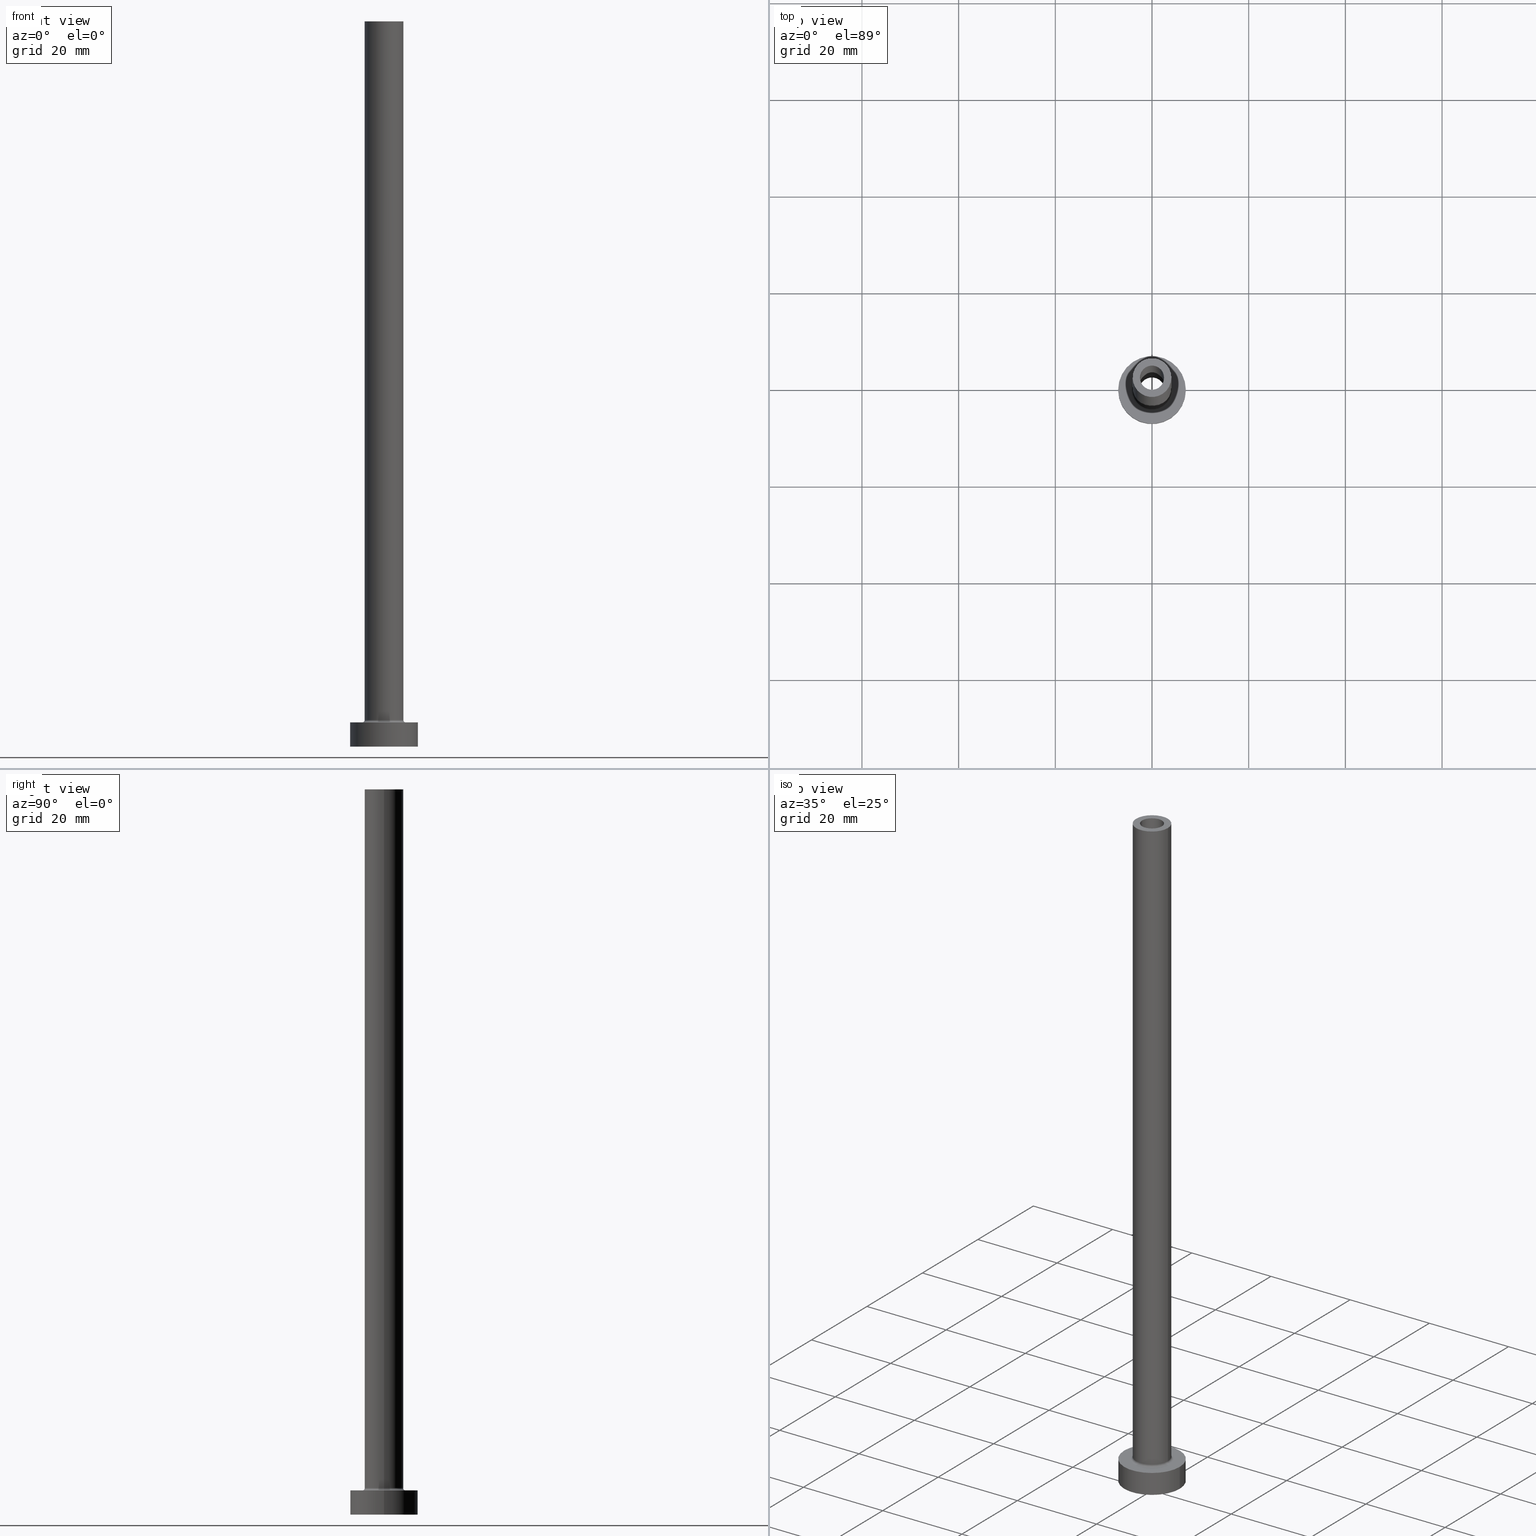
[diagram: canonical four-view strip — front | top / right | iso, engineering-drawing reading convention]
A machine part, canonical four-view strip (front | top / right | iso — engineering-drawing reading convention). The complete STEP part file that produces these views, byte-faithful:
ISO-10303-21;
HEADER;
FILE_DESCRIPTION (( 'STEP AP203' ),
    '1' );
FILE_NAME ('3b01.STEP',
    '2023-02-13T10:13:44',
    ( '' ),
    ( '' ),
    'SwSTEP 2.0',
    'SolidWorks 2019',
    '' );
FILE_SCHEMA (( 'CONFIG_CONTROL_DESIGN' ));
ENDSEC;

DATA;
#1 = CARTESIAN_POINT ( 'NONE',  ( 0.000000000000000000, 0.000000000000000000, 112.4953318805774103 ) ) ;
#2 = AXIS2_PLACEMENT_3D ( 'NONE', #149, #115, #110 ) ;
#3 = PRODUCT_RELATED_PRODUCT_CATEGORY ( 'detail', '', ( #233 ) ) ;
#4 = DIRECTION ( 'NONE',  ( 1.000000000000000000, 0.000000000000000000, 0.000000000000000000 ) ) ;
#5 = DIRECTION ( 'NONE',  ( 1.000000000000000000, 0.000000000000000000, 0.000000000000000000 ) ) ;
#6 = ORIENTED_EDGE ( 'NONE', *, *, #333, .F. ) ;
#7 = DIRECTION ( 'NONE',  ( 0.000000000000000000, 0.000000000000000000, 1.000000000000000000 ) ) ;
#8 = DIRECTION ( 'NONE',  ( 0.000000000000000000, -1.000000000000000000, 0.000000000000000000 ) ) ;
#9 = ORIENTED_EDGE ( 'NONE', *, *, #197, .T. ) ;
#10 = CIRCLE ( 'NONE', #324, 7.000000000000000000 ) ;
#11 = CARTESIAN_POINT ( 'NONE',  ( -4.000000000000000000, 0.000000000000000000, 150.0000000000000000 ) ) ;
#12 = EDGE_CURVE ( 'NONE', #256, #127, #291, .T. ) ;
#13 = PERSON_AND_ORGANIZATION ( #343, #301 ) ;
#14 = CARTESIAN_POINT ( 'NONE',  ( 0.000000000000000000, 0.000000000000000000, 5.500000000000005329 ) ) ;
#15 = ORIENTED_EDGE ( 'NONE', *, *, #36, .F. ) ;
#16 = DIRECTION ( 'NONE',  ( -0.000000000000000000, -0.000000000000000000, -1.000000000000000000 ) ) ;
#17 = ORIENTED_EDGE ( 'NONE', *, *, #243, .F. ) ;
#18 = EDGE_CURVE ( 'NONE', #127, #100, #37, .T. ) ;
#19 = AXIS2_PLACEMENT_3D ( 'NONE', #14, #378, #338 ) ;
#20 = DIRECTION ( 'NONE',  ( 1.000000000000000000, 0.000000000000000000, 0.000000000000000000 ) ) ;
#21 = AXIS2_PLACEMENT_3D ( 'NONE', #212, #282, #358 ) ;
#22 = VERTEX_POINT ( 'NONE', #292 ) ;
#23 = DIRECTION ( 'NONE',  ( 0.000000000000000000, 0.000000000000000000, -1.000000000000000000 ) ) ;
#24 = FACE_OUTER_BOUND ( 'NONE', #47, .T. ) ;
#25 = CARTESIAN_POINT ( 'NONE',  ( 0.000000000000000000, 0.000000000000000000, 5.000000000000000000 ) ) ;
#26 = DIRECTION ( 'NONE',  ( -1.000000000000000000, 0.000000000000000000, 0.000000000000000000 ) ) ;
#27 = VERTEX_POINT ( 'NONE', #458 ) ;
#28 = DIRECTION ( 'NONE',  ( 0.000000000000000000, 0.000000000000000000, -1.000000000000000000 ) ) ;
#29 = CIRCLE ( 'NONE', #360, 0.5000000000000004441 ) ;
#30 = AXIS2_PLACEMENT_3D ( 'NONE', #157, #369, #53 ) ;
#31 = EDGE_CURVE ( 'NONE', #330, #339, #29, .T. ) ;
#32 = CIRCLE ( 'NONE', #21, 4.500000000000000888 ) ;
#33 = ORIENTED_EDGE ( 'NONE', *, *, #36, .T. ) ;
#34 = ORIENTED_EDGE ( 'NONE', *, *, #294, .F. ) ;
#35 = DIRECTION ( 'NONE',  ( -0.000000000000000000, -0.000000000000000000, -1.000000000000000000 ) ) ;
#36 = EDGE_CURVE ( 'NONE', #22, #63, #225, .T. ) ;
#37 = CIRCLE ( 'NONE', #293, 0.5000000000000004441 ) ;
#38 = CARTESIAN_POINT ( 'NONE',  ( -4.000000000000000000, 0.000000000000000000, 150.0000000000000000 ) ) ;
#39 = APPROVAL_STATUS ( 'not_yet_approved' ) ;
#40 = CARTESIAN_POINT ( 'NONE',  ( 0.000000000000000000, 0.000000000000000000, 5.000000000000000000 ) ) ;
#41 = CALENDAR_DATE ( 2023, 13, 2 ) ;
#42 = DIRECTION ( 'NONE',  ( 0.000000000000000000, 0.000000000000000000, 1.000000000000000000 ) ) ;
#43 = DATE_AND_TIME ( #357, #309 ) ;
#44 = FACE_OUTER_BOUND ( 'NONE', #159, .T. ) ;
#45 = VECTOR ( 'NONE', #16, 1000.000000000000000 ) ;
#46 = DIRECTION ( 'NONE',  ( -1.000000000000000000, 0.000000000000000000, 0.000000000000000000 ) ) ;
#47 = EDGE_LOOP ( 'NONE', ( #327, #238, #302, #222 ) ) ;
#48 = ORIENTED_EDGE ( 'NONE', *, *, #229, .T. ) ;
#49 = DIRECTION ( 'NONE',  ( -1.000000000000000000, 0.000000000000000000, 0.000000000000000000 ) ) ;
#50 = ORIENTED_EDGE ( 'NONE', *, *, #294, .T. ) ;
#51 = ORIENTED_EDGE ( 'NONE', *, *, #12, .F. ) ;
#52 = CC_DESIGN_PERSON_AND_ORGANIZATION_ASSIGNMENT ( #13, #128, ( #271 ) ) ;
#53 = DIRECTION ( 'NONE',  ( 1.000000000000000000, 0.000000000000000000, 0.000000000000000000 ) ) ;
#54 = ORIENTED_EDGE ( 'NONE', *, *, #31, .T. ) ;
#55 = VECTOR ( 'NONE', #59, 1000.000000000000000 ) ;
#56 = DIRECTION ( 'NONE',  ( 1.000000000000000000, 0.000000000000000000, -0.000000000000000000 ) ) ;
#57 = CARTESIAN_POINT ( 'NONE',  ( 7.000000000000000000, 8.572527594031473190E-16, 0.000000000000000000 ) ) ;
#58 = EDGE_CURVE ( 'NONE', #413, #27, #400, .T. ) ;
#59 = DIRECTION ( 'NONE',  ( -0.000000000000000000, -0.000000000000000000, -1.000000000000000000 ) ) ;
#60 = UNCERTAINTY_MEASURE_WITH_UNIT (LENGTH_MEASURE( 1.000000000000000082E-05 ), #453, 'distance_accuracy_value', 'NONE');
#61 = EDGE_LOOP ( 'NONE', ( #122, #129 ) ) ;
#62 = CYLINDRICAL_SURFACE ( 'NONE', #153, 2.500000000000000000 ) ;
#63 = VERTEX_POINT ( 'NONE', #456 ) ;
#64 = CARTESIAN_POINT ( 'NONE',  ( 2.649999999999999911, 3.245314017740485962E-16, 0.000000000000000000 ) ) ;
#65 = EDGE_CURVE ( 'NONE', #310, #152, #96, .T. ) ;
#66 = DIRECTION ( 'NONE',  ( 0.000000000000000000, 0.000000000000000000, 1.000000000000000000 ) ) ;
#67 = CIRCLE ( 'NONE', #196, 7.000000000000000000 ) ;
#68 = CARTESIAN_POINT ( 'NONE',  ( 4.000000000000000000, 4.898587196589412829E-16, 150.0000000000000000 ) ) ;
#69 = EDGE_CURVE ( 'NONE', #183, #330, #387, .T. ) ;
#70 = FACE_OUTER_BOUND ( 'NONE', #421, .T. ) ;
#71 = CARTESIAN_POINT ( 'NONE',  ( 0.000000000000000000, 0.000000000000000000, 150.0000000000000000 ) ) ;
#72 = TOROIDAL_SURFACE ( 'NONE', #111, 4.500000000000000888, 0.5000000000000000000 ) ;
#73 = CARTESIAN_POINT ( 'NONE',  ( 0.000000000000000000, 0.000000000000000000, 150.0000000000000000 ) ) ;
#74 = EDGE_CURVE ( 'NONE', #417, #204, #406, .T. ) ;
#75 = DIRECTION ( 'NONE',  ( 0.000000000000000000, 0.000000000000000000, 1.000000000000000000 ) ) ;
#76 = VERTEX_POINT ( 'NONE', #141 ) ;
#77 = CIRCLE ( 'NONE', #254, 2.649999999999999911 ) ;
#78 = CC_DESIGN_APPROVAL ( #81, ( #271 ) ) ;
#79 = DIRECTION ( 'NONE',  ( 1.000000000000000000, 0.000000000000000000, 0.000000000000000000 ) ) ;
#80 = ORIENTED_EDGE ( 'NONE', *, *, #398, .F. ) ;
#81 = APPROVAL ( #39, 'NEUR�EN�' ) ;
#82 = ORIENTED_EDGE ( 'NONE', *, *, #287, .T. ) ;
#83 = PERSON_AND_ORGANIZATION_ROLE ( 'classification_officer' ) ;
#84 = CARTESIAN_POINT ( 'NONE',  ( -7.000000000000000000, 0.000000000000000000, 5.000000000000000000 ) ) ;
#85 = ORIENTED_EDGE ( 'NONE', *, *, #384, .F. ) ;
#86 = DIRECTION ( 'NONE',  ( 0.000000000000000000, 0.000000000000000000, 1.000000000000000000 ) ) ;
#87 = APPROVAL_STATUS ( 'not_yet_approved' ) ;
#88 = AXIS2_PLACEMENT_3D ( 'NONE', #317, #281, #56 ) ;
#89 = LOCAL_TIME ( 11, 13, 44.00000000000000000, #213 ) ;
#90 = CC_DESIGN_DATE_AND_TIME_ASSIGNMENT ( #365, #221, ( #316 ) ) ;
#91 = FACE_OUTER_BOUND ( 'NONE', #362, .T. ) ;
#92 = ORIENTED_EDGE ( 'NONE', *, *, #181, .F. ) ;
#93 = FACE_OUTER_BOUND ( 'NONE', #452, .T. ) ;
#94 = CARTESIAN_POINT ( 'NONE',  ( 0.000000000000000000, 0.000000000000000000, 105.0000000000000000 ) ) ;
#95 = ORIENTED_EDGE ( 'NONE', *, *, #398, .T. ) ;
#96 = CIRCLE ( 'NONE', #412, 7.000000000000000000 ) ;
#97 = AXIS2_PLACEMENT_3D ( 'NONE', #167, #138, #201 ) ;
#98 = ORIENTED_EDGE ( 'NONE', *, *, #31, .F. ) ;
#99 = ADVANCED_FACE ( 'NONE', ( #389, #70 ), #116, .T. ) ;
#100 = VERTEX_POINT ( 'NONE', #227 ) ;
#101 = CARTESIAN_POINT ( 'NONE',  ( 2.500000000000000000, 3.061616997868382648E-16, 105.0000000000000000 ) ) ;
#102 = ORIENTED_EDGE ( 'NONE', *, *, #74, .T. ) ;
#103 = AXIS2_PLACEMENT_3D ( 'NONE', #348, #402, #435 ) ;
#104 = ADVANCED_FACE ( 'NONE', ( #260 ), #409, .F. ) ;
#105 = LOCAL_TIME ( 11, 13, 44.00000000000000000, #123 ) ;
#106 = ORIENTED_EDGE ( 'NONE', *, *, #181, .T. ) ;
#107 = DIRECTION ( 'NONE',  ( 1.000000000000000000, 0.000000000000000000, 0.000000000000000000 ) ) ;
#108 = ORIENTED_EDGE ( 'NONE', *, *, #438, .T. ) ;
#109 = DIRECTION ( 'NONE',  ( 0.000000000000000000, 0.000000000000000000, 1.000000000000000000 ) ) ;
#110 = DIRECTION ( 'NONE',  ( 1.000000000000000000, 0.000000000000000000, 0.000000000000000000 ) ) ;
#111 = AXIS2_PLACEMENT_3D ( 'NONE', #296, #376, #445 ) ;
#112 = LOCAL_TIME ( 11, 13, 44.00000000000000000, #394 ) ;
#113 = DATE_TIME_ROLE ( 'creation_date' ) ;
#114 = APPLICATION_CONTEXT ( 'configuration controlled 3d designs of mechanical parts and assemblies' ) ;
#115 = DIRECTION ( 'NONE',  ( 0.000000000000000000, 0.000000000000000000, 1.000000000000000000 ) ) ;
#116 = PLANE ( 'NONE',  #88 ) ;
#117 = CYLINDRICAL_SURFACE ( 'NONE', #120, 4.000000000000000000 ) ;
#118 = DIRECTION ( 'NONE',  ( -1.000000000000000000, 1.224646799147351482E-16, 0.000000000000000000 ) ) ;
#119 = EDGE_CURVE ( 'NONE', #352, #76, #77, .T. ) ;
#120 = AXIS2_PLACEMENT_3D ( 'NONE', #71, #328, #432 ) ;
#121 = ORIENTED_EDGE ( 'NONE', *, *, #272, .T. ) ;
#122 = ORIENTED_EDGE ( 'NONE', *, *, #454, .T. ) ;
#123 = COORDINATED_UNIVERSAL_TIME_OFFSET ( 1, 0, .AHEAD. ) ;
#124 = FACE_BOUND ( 'NONE', #235, .T. ) ;
#125 = ORIENTED_EDGE ( 'NONE', *, *, #65, .T. ) ;
#126 = CARTESIAN_POINT ( 'NONE',  ( 0.000000000000000000, 0.000000000000000000, 5.000000000000000000 ) ) ;
#127 = VERTEX_POINT ( 'NONE', #448 ) ;
#128 = PERSON_AND_ORGANIZATION_ROLE ( 'creator' ) ;
#129 = ORIENTED_EDGE ( 'NONE', *, *, #58, .T. ) ;
#130 = CARTESIAN_POINT ( 'NONE',  ( -7.000000000000000000, 0.000000000000000000, 5.000000000000000000 ) ) ;
#131 = PRODUCT_DEFINITION ( 'NEZN�M�', '', #271, #188 ) ;
#132 = ORIENTED_EDGE ( 'NONE', *, *, #272, .F. ) ;
#133 = PERSON_AND_ORGANIZATION_ROLE ( 'design_owner' ) ;
#134 = AXIS2_PLACEMENT_3D ( 'NONE', #40, #214, #176 ) ;
#135 = EDGE_LOOP ( 'NONE', ( #368, #163 ) ) ;
#136 = ADVANCED_FACE ( 'NONE', ( #24 ), #62, .F. ) ;
#137 = DIRECTION ( 'NONE',  ( 0.000000000000000000, 0.000000000000000000, 1.000000000000000000 ) ) ;
#138 = DIRECTION ( 'NONE',  ( 0.000000000000000000, 0.000000000000000000, 1.000000000000000000 ) ) ;
#139 = AXIS2_PLACEMENT_3D ( 'NONE', #408, #259, #305 ) ;
#140 = CARTESIAN_POINT ( 'NONE',  ( 0.000000000000000000, 0.000000000000000000, 0.000000000000000000 ) ) ;
#141 = CARTESIAN_POINT ( 'NONE',  ( -2.649999999999999911, 0.000000000000000000, 105.0000000000000000 ) ) ;
#142 = DIRECTION ( 'NONE',  ( 1.000000000000000000, 0.000000000000000000, 0.000000000000000000 ) ) ;
#143 = APPROVAL ( #355, 'NEUR�EN�' ) ;
#144 = APPROVAL_DATE_TIME ( #177, #143 ) ;
#145 = LINE ( 'NONE', #284, #308 ) ;
#146 = CC_DESIGN_SECURITY_CLASSIFICATION ( #316, ( #271 ) ) ;
#147 = CARTESIAN_POINT ( 'NONE',  ( 0.000000000000000000, 0.000000000000000000, 0.000000000000000000 ) ) ;
#148 = APPROVAL_ROLE ( '' ) ;
#149 = CARTESIAN_POINT ( 'NONE',  ( 0.000000000000000000, 0.000000000000000000, 5.500000000000005329 ) ) ;
#150 = CC_DESIGN_DATE_AND_TIME_ASSIGNMENT ( #43, #113, ( #131 ) ) ;
#151 = ORIENTED_EDGE ( 'NONE', *, *, #392, .T. ) ;
#152 = VERTEX_POINT ( 'NONE', #130 ) ;
#153 = AXIS2_PLACEMENT_3D ( 'NONE', #230, #371, #441 ) ;
#154 = SECURITY_CLASSIFICATION_LEVEL ( 'unclassified' ) ;
#155 = LINE ( 'NONE', #336, #337 ) ;
#156 = PERSON_AND_ORGANIZATION ( #343, #301 ) ;
#157 = CARTESIAN_POINT ( 'NONE',  ( 0.000000000000000000, 0.000000000000000000, 0.000000000000000000 ) ) ;
#158 = APPROVAL ( #87, 'NEUR�EN�' ) ;
#159 = EDGE_LOOP ( 'NONE', ( #172, #261, #265, #51 ) ) ;
#160 = DIRECTION ( 'NONE',  ( 0.000000000000000000, 0.000000000000000000, -1.000000000000000000 ) ) ;
#161 = PERSON_AND_ORGANIZATION_ROLE ( 'design_supplier' ) ;
#162 = FACE_OUTER_BOUND ( 'NONE', #416, .T. ) ;
#163 = ORIENTED_EDGE ( 'NONE', *, *, #74, .F. ) ;
#164 = ADVANCED_FACE ( 'NONE', ( #91 ), #72, .F. ) ;
#165 = FACE_BOUND ( 'NONE', #135, .T. ) ;
#166 = ORIENTED_EDGE ( 'NONE', *, *, #438, .F. ) ;
#167 = CARTESIAN_POINT ( 'NONE',  ( 0.000000000000000000, 0.000000000000000000, 105.0000000000000000 ) ) ;
#168 = CIRCLE ( 'NONE', #269, 2.649999999999999911 ) ;
#169 = ORIENTED_EDGE ( 'NONE', *, *, #249, .T. ) ;
#170 = CC_DESIGN_PERSON_AND_ORGANIZATION_ASSIGNMENT ( #156, #83, ( #316 ) ) ;
#171 = ORIENTED_EDGE ( 'NONE', *, *, #392, .F. ) ;
#172 = ORIENTED_EDGE ( 'NONE', *, *, #363, .F. ) ;
#173 = AXIS2_PLACEMENT_3D ( 'NONE', #267, #297, #373 ) ;
#174 = EDGE_LOOP ( 'NONE', ( #350, #171, #199, #9 ) ) ;
#175 = CALENDAR_DATE ( 2023, 13, 2 ) ;
#176 = DIRECTION ( 'NONE',  ( -1.000000000000000000, 0.000000000000000000, 0.000000000000000000 ) ) ;
#177 = DATE_AND_TIME ( #41, #89 ) ;
#178 = DIRECTION ( 'NONE',  ( 0.000000000000000000, 0.000000000000000000, 1.000000000000000000 ) ) ;
#179 = CARTESIAN_POINT ( 'NONE',  ( 4.000000000000000000, 4.898587196589412829E-16, 5.500000000000005329 ) ) ;
#180 = AXIS2_PLACEMENT_3D ( 'NONE', #461, #252, #399 ) ;
#181 = EDGE_CURVE ( 'NONE', #76, #204, #155, .T. ) ;
#182 = CARTESIAN_POINT ( 'NONE',  ( 0.000000000000000000, 0.000000000000000000, 150.0000000000000000 ) ) ;
#183 = VERTEX_POINT ( 'NONE', #191 ) ;
#184 = ORIENTED_EDGE ( 'NONE', *, *, #223, .T. ) ;
#185 = CARTESIAN_POINT ( 'NONE',  ( 0.000000000000000000, 0.000000000000000000, 150.0000000000000000 ) ) ;
#186 = ORIENTED_EDGE ( 'NONE', *, *, #18, .F. ) ;
#187 = DIRECTION ( 'NONE',  ( 1.000000000000000000, 0.000000000000000000, 0.000000000000000000 ) ) ;
#188 = DESIGN_CONTEXT ( 'detailed design', #210, 'design' ) ;
#189 = CIRCLE ( 'NONE', #420, 2.500000000000000000 ) ;
#190 = VERTEX_POINT ( 'NONE', #57 ) ;
#191 = CARTESIAN_POINT ( 'NONE',  ( 4.000000000000000000, 4.898587196589412829E-16, 150.0000000000000000 ) ) ;
#192 = ADVANCED_FACE ( 'NONE', ( #124, #93 ), #437, .T. ) ;
#193 = FACE_OUTER_BOUND ( 'NONE', #439, .T. ) ;
#194 = LINE ( 'NONE', #84, #45 ) ;
#195 = EDGE_LOOP ( 'NONE', ( #85, #200 ) ) ;
#196 = AXIS2_PLACEMENT_3D ( 'NONE', #245, #178, #288 ) ;
#197 = EDGE_CURVE ( 'NONE', #127, #330, #239, .T. ) ;
#198 = CARTESIAN_POINT ( 'NONE',  ( -2.649999999999999911, 0.000000000000000000, 0.000000000000000000 ) ) ;
#199 = ORIENTED_EDGE ( 'NONE', *, *, #12, .T. ) ;
#200 = ORIENTED_EDGE ( 'NONE', *, *, #119, .F. ) ;
#201 = DIRECTION ( 'NONE',  ( 1.000000000000000000, 0.000000000000000000, -0.000000000000000000 ) ) ;
#202 = CIRCLE ( 'NONE', #379, 4.500000000000000888 ) ;
#203 = ADVANCED_BREP_SHAPE_REPRESENTATION ( '3b01', ( #418, #347 ), #255 ) ;
#204 = VERTEX_POINT ( 'NONE', #198 ) ;
#205 = DIRECTION ( 'NONE',  ( -0.000000000000000000, -0.000000000000000000, -1.000000000000000000 ) ) ;
#206 = CARTESIAN_POINT ( 'NONE',  ( -4.500000000000000888, 5.510910596163089556E-16, 5.500000000000005329 ) ) ;
#207 = ADVANCED_FACE ( 'NONE', ( #165, #193 ), #404, .F. ) ;
#208 = CARTESIAN_POINT ( 'NONE',  ( -7.000000000000000000, 0.000000000000000000, 0.000000000000000000 ) ) ;
#209 = AXIS2_PLACEMENT_3D ( 'NONE', #341, #28, #26 ) ;
#210 = APPLICATION_CONTEXT ( 'configuration controlled 3d designs of mechanical parts and assemblies' ) ;
#211 = FACE_OUTER_BOUND ( 'NONE', #397, .T. ) ;
#212 = CARTESIAN_POINT ( 'NONE',  ( 0.000000000000000000, 0.000000000000000000, 5.000000000000000000 ) ) ;
#213 = COORDINATED_UNIVERSAL_TIME_OFFSET ( 1, 0, .AHEAD. ) ;
#214 = DIRECTION ( 'NONE',  ( -0.000000000000000000, -0.000000000000000000, -1.000000000000000000 ) ) ;
#215 = ORIENTED_EDGE ( 'NONE', *, *, #384, .T. ) ;
#216 = AXIS2_PLACEMENT_3D ( 'NONE', #73, #42, #79 ) ;
#217 = AXIS2_PLACEMENT_3D ( 'NONE', #273, #414, #383 ) ;
#218 = ORIENTED_EDGE ( 'NONE', *, *, #454, .F. ) ;
#219 = CYLINDRICAL_SURFACE ( 'NONE', #361, 4.000000000000000000 ) ;
#220 = CARTESIAN_POINT ( 'NONE',  ( 0.000000000000000000, 0.000000000000000000, 105.0000000000000000 ) ) ;
#221 = DATE_TIME_ROLE ( 'classification_date' ) ;
#222 = ORIENTED_EDGE ( 'NONE', *, *, #58, .F. ) ;
#223 = EDGE_CURVE ( 'NONE', #152, #370, #194, .T. ) ;
#224 = CARTESIAN_POINT ( 'NONE',  ( -2.500000000000000000, 0.000000000000000000, 150.0000000000000000 ) ) ;
#225 = CIRCLE ( 'NONE', #103, 2.500000000000000000 ) ;
#226 = CC_DESIGN_APPROVAL ( #158, ( #316 ) ) ;
#227 = CARTESIAN_POINT ( 'NONE',  ( -4.500000000000000888, 5.510910596163088569E-16, 5.000000000000002665 ) ) ;
#228 = LINE ( 'NONE', #299, #55 ) ;
#229 = EDGE_CURVE ( 'NONE', #190, #370, #434, .T. ) ;
#230 = CARTESIAN_POINT ( 'NONE',  ( 0.000000000000000000, 0.000000000000000000, 150.0000000000000000 ) ) ;
#231 = ORIENTED_EDGE ( 'NONE', *, *, #65, .F. ) ;
#232 = AXIS2_PLACEMENT_3D ( 'NONE', #185, #109, #5 ) ;
#233 = PRODUCT ( '3b01', '3b01', '', ( #241 ) ) ;
#234 = CARTESIAN_POINT ( 'NONE',  ( 2.649999999999999911, 3.245314017740485962E-16, 112.4953318805774103 ) ) ;
#235 = EDGE_LOOP ( 'NONE', ( #169, #95 ) ) ;
#236 = FACE_OUTER_BOUND ( 'NONE', #257, .T. ) ;
#237 = EDGE_CURVE ( 'NONE', #22, #27, #331, .T. ) ;
#238 = ORIENTED_EDGE ( 'NONE', *, *, #333, .T. ) ;
#239 = CIRCLE ( 'NONE', #19, 4.000000000000000000 ) ;
#240 = DIRECTION ( 'NONE',  ( 1.000000000000000000, 0.000000000000000000, 0.000000000000000000 ) ) ;
#241 = MECHANICAL_CONTEXT ( 'NONE', #114, 'mechanical' ) ;
#242 = ORIENTED_EDGE ( 'NONE', *, *, #237, .F. ) ;
#243 = EDGE_CURVE ( 'NONE', #310, #190, #228, .T. ) ;
#244 = PERSON_AND_ORGANIZATION ( #343, #301 ) ;
#245 = CARTESIAN_POINT ( 'NONE',  ( 0.000000000000000000, 0.000000000000000000, 5.000000000000000000 ) ) ;
#246 = AXIS2_PLACEMENT_3D ( 'NONE', #319, #359, #142 ) ;
#247 = APPROVAL_PERSON_ORGANIZATION ( #303, #158, #334 ) ;
#248 = FACE_OUTER_BOUND ( 'NONE', #380, .T. ) ;
#249 = EDGE_CURVE ( 'NONE', #339, #100, #202, .T. ) ;
#250 = CARTESIAN_POINT ( 'NONE',  ( 7.000000000000000000, 8.572527594031473190E-16, 5.000000000000000000 ) ) ;
#251 = PERSON_AND_ORGANIZATION ( #343, #301 ) ;
#252 = DIRECTION ( 'NONE',  ( 0.000000000000000000, 0.000000000000000000, 1.000000000000000000 ) ) ;
#253 = DIRECTION ( 'NONE',  ( 0.000000000000000000, 0.000000000000000000, -1.000000000000000000 ) ) ;
#254 = AXIS2_PLACEMENT_3D ( 'NONE', #94, #304, #187 ) ;
#255 =( GEOMETRIC_REPRESENTATION_CONTEXT ( 3 ) GLOBAL_UNCERTAINTY_ASSIGNED_CONTEXT ( ( #60 ) ) GLOBAL_UNIT_ASSIGNED_CONTEXT ( ( #453, #386, #447 ) ) REPRESENTATION_CONTEXT ( 'NONE', 'WORKASPACE' ) );
#256 = VERTEX_POINT ( 'NONE', #11 ) ;
#257 = EDGE_LOOP ( 'NONE', ( #17, #34, #184, #121 ) ) ;
#258 = DATE_AND_TIME ( #440, #105 ) ;
#259 = DIRECTION ( 'NONE',  ( 0.000000000000000000, 0.000000000000000000, 1.000000000000000000 ) ) ;
#260 = FACE_OUTER_BOUND ( 'NONE', #367, .T. ) ;
#261 = ORIENTED_EDGE ( 'NONE', *, *, #69, .T. ) ;
#262 = CALENDAR_DATE ( 2023, 13, 2 ) ;
#263 = ADVANCED_FACE ( 'NONE', ( #162 ), #411, .F. ) ;
#264 = DIRECTION ( 'NONE',  ( -0.000000000000000000, -0.000000000000000000, -1.000000000000000000 ) ) ;
#265 = ORIENTED_EDGE ( 'NONE', *, *, #340, .T. ) ;
#266 = PERSON_AND_ORGANIZATION ( #343, #301 ) ;
#267 = CARTESIAN_POINT ( 'NONE',  ( 0.000000000000000000, 0.000000000000000000, 112.4953318805774103 ) ) ;
#268 = ORIENTED_EDGE ( 'NONE', *, *, #119, .T. ) ;
#269 = AXIS2_PLACEMENT_3D ( 'NONE', #147, #390, #354 ) ;
#270 = APPLICATION_PROTOCOL_DEFINITION ( 'international standard', 'config_control_design', 1994, #210 ) ;
#271 = PRODUCT_DEFINITION_FORMATION_WITH_SPECIFIED_SOURCE ( 'LIBOVOLN�', '', #233, .NOT_KNOWN. ) ;
#272 = EDGE_CURVE ( 'NONE', #370, #190, #10, .T. ) ;
#273 = CARTESIAN_POINT ( 'NONE',  ( 0.000000000000000000, 0.000000000000000000, 105.0000000000000000 ) ) ;
#274 = ORIENTED_EDGE ( 'NONE', *, *, #223, .F. ) ;
#275 = PLANE ( 'NONE',  #97 ) ;
#276 = CARTESIAN_POINT ( 'NONE',  ( 0.000000000000000000, 0.000000000000000000, 5.000000000000000000 ) ) ;
#277 = LINE ( 'NONE', #234, #459 ) ;
#278 = VECTOR ( 'NONE', #160, 1000.000000000000000 ) ;
#279 = DIRECTION ( 'NONE',  ( -0.000000000000000000, -0.000000000000000000, -1.000000000000000000 ) ) ;
#280 = DIRECTION ( 'NONE',  ( 0.000000000000000000, 0.000000000000000000, -1.000000000000000000 ) ) ;
#281 = DIRECTION ( 'NONE',  ( 0.000000000000000000, 0.000000000000000000, 1.000000000000000000 ) ) ;
#282 = DIRECTION ( 'NONE',  ( -0.000000000000000000, -0.000000000000000000, -1.000000000000000000 ) ) ;
#283 = COORDINATED_UNIVERSAL_TIME_OFFSET ( 1, 0, .AHEAD. ) ;
#284 = CARTESIAN_POINT ( 'NONE',  ( 2.500000000000000000, 3.061616997868382648E-16, 150.0000000000000000 ) ) ;
#285 = VECTOR ( 'NONE', #205, 1000.000000000000000 ) ;
#286 = AXIS2_PLACEMENT_3D ( 'NONE', #220, #311, #314 ) ;
#287 = EDGE_CURVE ( 'NONE', #204, #417, #168, .T. ) ;
#288 = DIRECTION ( 'NONE',  ( 1.000000000000000000, 0.000000000000000000, 0.000000000000000000 ) ) ;
#289 = DATE_AND_TIME ( #175, #112 ) ;
#290 = FACE_OUTER_BOUND ( 'NONE', #174, .T. ) ;
#291 = LINE ( 'NONE', #38, #391 ) ;
#292 = CARTESIAN_POINT ( 'NONE',  ( -2.500000000000000000, 0.000000000000000000, 150.0000000000000000 ) ) ;
#293 = AXIS2_PLACEMENT_3D ( 'NONE', #206, #433, #118 ) ;
#294 = EDGE_CURVE ( 'NONE', #152, #310, #67, .T. ) ;
#295 = COORDINATED_UNIVERSAL_TIME_OFFSET ( 1, 0, .AHEAD. ) ;
#296 = CARTESIAN_POINT ( 'NONE',  ( 0.000000000000000000, 0.000000000000000000, 5.500000000000005329 ) ) ;
#297 = DIRECTION ( 'NONE',  ( 0.000000000000000000, 0.000000000000000000, -1.000000000000000000 ) ) ;
#298 = CC_DESIGN_PERSON_AND_ORGANIZATION_ASSIGNMENT ( #244, #320, ( #131 ) ) ;
#299 = CARTESIAN_POINT ( 'NONE',  ( 7.000000000000000000, 8.572527594031473190E-16, 5.000000000000000000 ) ) ;
#300 = CIRCLE ( 'NONE', #216, 4.000000000000000000 ) ;
#301 = ORGANIZATION ( 'NEUR�EN�', 'NEUR�EN�', '' ) ;
#302 = ORIENTED_EDGE ( 'NONE', *, *, #237, .T. ) ;
#303 = PERSON_AND_ORGANIZATION ( #343, #301 ) ;
#304 = DIRECTION ( 'NONE',  ( 0.000000000000000000, 0.000000000000000000, 1.000000000000000000 ) ) ;
#305 = DIRECTION ( 'NONE',  ( 1.000000000000000000, 0.000000000000000000, -0.000000000000000000 ) ) ;
#306 = ADVANCED_FACE ( 'NONE', ( #429 ), #457, .F. ) ;
#307 = ORIENTED_EDGE ( 'NONE', *, *, #249, .F. ) ;
#308 = VECTOR ( 'NONE', #395, 1000.000000000000000 ) ;
#309 = LOCAL_TIME ( 11, 13, 44.00000000000000000, #283 ) ;
#310 = VERTEX_POINT ( 'NONE', #250 ) ;
#311 = DIRECTION ( 'NONE',  ( 0.000000000000000000, 0.000000000000000000, 1.000000000000000000 ) ) ;
#312 = FACE_OUTER_BOUND ( 'NONE', #195, .T. ) ;
#313 = CC_DESIGN_PERSON_AND_ORGANIZATION_ASSIGNMENT ( #381, #133, ( #233 ) ) ;
#314 = DIRECTION ( 'NONE',  ( 1.000000000000000000, 0.000000000000000000, 0.000000000000000000 ) ) ;
#315 = AXIS2_PLACEMENT_3D ( 'NONE', #1, #280, #46 ) ;
#316 = SECURITY_CLASSIFICATION ( '', '', #154 ) ;
#317 = CARTESIAN_POINT ( 'NONE',  ( 0.000000000000000000, 0.000000000000000000, 150.0000000000000000 ) ) ;
#318 = APPROVAL_ROLE ( '' ) ;
#319 = CARTESIAN_POINT ( 'NONE',  ( 0.000000000000000000, 0.000000000000000000, 5.500000000000005329 ) ) ;
#320 = PERSON_AND_ORGANIZATION_ROLE ( 'creator' ) ;
#321 = CYLINDRICAL_SURFACE ( 'NONE', #315, 2.649999999999999911 ) ;
#322 = ADVANCED_FACE ( 'NONE', ( #211 ), #396, .T. ) ;
#323 = CARTESIAN_POINT ( 'NONE',  ( 0.000000000000000000, 0.000000000000000000, 150.0000000000000000 ) ) ;
#324 = AXIS2_PLACEMENT_3D ( 'NONE', #415, #75, #4 ) ;
#325 = PERSON_AND_ORGANIZATION ( #343, #301 ) ;
#326 = CARTESIAN_POINT ( 'NONE',  ( 2.649999999999999911, 3.245314017740485962E-16, 105.0000000000000000 ) ) ;
#327 = ORIENTED_EDGE ( 'NONE', *, *, #356, .F. ) ;
#328 = DIRECTION ( 'NONE',  ( -0.000000000000000000, -0.000000000000000000, -1.000000000000000000 ) ) ;
#329 = CARTESIAN_POINT ( 'NONE',  ( 4.500000000000000888, 0.000000000000000000, 5.500000000000005329 ) ) ;
#330 = VERTEX_POINT ( 'NONE', #179 ) ;
#331 = LINE ( 'NONE', #224, #278 ) ;
#332 = AXIS2_PLACEMENT_3D ( 'NONE', #335, #86, #443 ) ;
#333 = EDGE_CURVE ( 'NONE', #63, #22, #189, .T. ) ;
#334 = APPROVAL_ROLE ( '' ) ;
#335 = CARTESIAN_POINT ( 'NONE',  ( 0.000000000000000000, 0.000000000000000000, 0.000000000000000000 ) ) ;
#336 = CARTESIAN_POINT ( 'NONE',  ( -2.649999999999999911, 0.000000000000000000, 112.4953318805774103 ) ) ;
#337 = VECTOR ( 'NONE', #407, 1000.000000000000000 ) ;
#338 = DIRECTION ( 'NONE',  ( 1.000000000000000000, 0.000000000000000000, 0.000000000000000000 ) ) ;
#339 = VERTEX_POINT ( 'NONE', #426 ) ;
#340 = EDGE_CURVE ( 'NONE', #330, #127, #450, .T. ) ;
#341 = CARTESIAN_POINT ( 'NONE',  ( 0.000000000000000000, 0.000000000000000000, 150.0000000000000000 ) ) ;
#342 = ORIENTED_EDGE ( 'NONE', *, *, #340, .F. ) ;
#343 = PERSON ( 'NEUR�EN�', 'NEUR�EN�', 'NEUR�EN�', ('NEUR�EN�'), ('NEUR�EN�'), ('NEUR�EN�') ) ;
#344 = CARTESIAN_POINT ( 'NONE',  ( 0.000000000000000000, 0.000000000000000000, 0.000000000000000000 ) ) ;
#345 = APPROVAL_PERSON_ORGANIZATION ( #325, #81, #148 ) ;
#346 = FACE_BOUND ( 'NONE', #61, .T. ) ;
#347 = AXIS2_PLACEMENT_3D ( 'NONE', #344, #66, #107 ) ;
#348 = CARTESIAN_POINT ( 'NONE',  ( 0.000000000000000000, 0.000000000000000000, 150.0000000000000000 ) ) ;
#349 = ADVANCED_FACE ( 'NONE', ( #248 ), #321, .F. ) ;
#350 = ORIENTED_EDGE ( 'NONE', *, *, #69, .F. ) ;
#351 = PRODUCT_DEFINITION_SHAPE ( 'NONE', 'NONE',  #131 ) ;
#352 = VERTEX_POINT ( 'NONE', #326 ) ;
#353 = AXIS2_PLACEMENT_3D ( 'NONE', #140, #279, #423 ) ;
#354 = DIRECTION ( 'NONE',  ( 1.000000000000000000, 0.000000000000000000, 0.000000000000000000 ) ) ;
#355 = APPROVAL_STATUS ( 'not_yet_approved' ) ;
#356 = EDGE_CURVE ( 'NONE', #63, #413, #145, .T. ) ;
#357 = CALENDAR_DATE ( 2023, 13, 2 ) ;
#358 = DIRECTION ( 'NONE',  ( 1.000000000000000000, 0.000000000000000000, 0.000000000000000000 ) ) ;
#359 = DIRECTION ( 'NONE',  ( 0.000000000000000000, 0.000000000000000000, 1.000000000000000000 ) ) ;
#360 = AXIS2_PLACEMENT_3D ( 'NONE', #329, #8, #253 ) ;
#361 = AXIS2_PLACEMENT_3D ( 'NONE', #323, #366, #49 ) ;
#362 = EDGE_LOOP ( 'NONE', ( #403, #364, #307, #98 ) ) ;
#363 = EDGE_CURVE ( 'NONE', #183, #256, #385, .T. ) ;
#364 = ORIENTED_EDGE ( 'NONE', *, *, #18, .T. ) ;
#365 = DATE_AND_TIME ( #262, #393 ) ;
#366 = DIRECTION ( 'NONE',  ( -0.000000000000000000, -0.000000000000000000, -1.000000000000000000 ) ) ;
#367 = EDGE_LOOP ( 'NONE', ( #166, #268, #106, #82 ) ) ;
#368 = ORIENTED_EDGE ( 'NONE', *, *, #287, .F. ) ;
#369 = DIRECTION ( 'NONE',  ( 0.000000000000000000, 0.000000000000000000, 1.000000000000000000 ) ) ;
#370 = VERTEX_POINT ( 'NONE', #208 ) ;
#371 = DIRECTION ( 'NONE',  ( 0.000000000000000000, 0.000000000000000000, -1.000000000000000000 ) ) ;
#372 = APPROVAL_DATE_TIME ( #258, #158 ) ;
#373 = DIRECTION ( 'NONE',  ( -1.000000000000000000, 0.000000000000000000, 0.000000000000000000 ) ) ;
#374 = ADVANCED_FACE ( 'NONE', ( #290 ), #117, .T. ) ;
#375 = SHAPE_DEFINITION_REPRESENTATION ( #351, #203 ) ;
#376 = DIRECTION ( 'NONE',  ( 0.000000000000000000, 0.000000000000000000, 1.000000000000000000 ) ) ;
#377 = EDGE_LOOP ( 'NONE', ( #186, #342, #54, #80 ) ) ;
#378 = DIRECTION ( 'NONE',  ( 0.000000000000000000, 0.000000000000000000, 1.000000000000000000 ) ) ;
#379 = AXIS2_PLACEMENT_3D ( 'NONE', #126, #264, #20 ) ;
#380 = EDGE_LOOP ( 'NONE', ( #215, #108, #102, #92 ) ) ;
#381 = PERSON_AND_ORGANIZATION ( #343, #301 ) ;
#382 = ORIENTED_EDGE ( 'NONE', *, *, #356, .T. ) ;
#383 = DIRECTION ( 'NONE',  ( 1.000000000000000000, 0.000000000000000000, 0.000000000000000000 ) ) ;
#384 = EDGE_CURVE ( 'NONE', #76, #352, #427, .T. ) ;
#385 = CIRCLE ( 'NONE', #232, 4.000000000000000000 ) ;
#386 =( NAMED_UNIT ( * ) PLANE_ANGLE_UNIT ( ) SI_UNIT ( $, .RADIAN. ) );
#387 = LINE ( 'NONE', #68, #285 ) ;
#388 = DIRECTION ( 'NONE',  ( -0.000000000000000000, -0.000000000000000000, -1.000000000000000000 ) ) ;
#389 = FACE_BOUND ( 'NONE', #446, .T. ) ;
#390 = DIRECTION ( 'NONE',  ( -0.000000000000000000, -0.000000000000000000, -1.000000000000000000 ) ) ;
#391 = VECTOR ( 'NONE', #35, 1000.000000000000000 ) ;
#392 = EDGE_CURVE ( 'NONE', #256, #183, #300, .T. ) ;
#393 = LOCAL_TIME ( 11, 13, 44.00000000000000000, #295 ) ;
#394 = COORDINATED_UNIVERSAL_TIME_OFFSET ( 1, 0, .AHEAD. ) ;
#395 = DIRECTION ( 'NONE',  ( 0.000000000000000000, 0.000000000000000000, -1.000000000000000000 ) ) ;
#396 = CYLINDRICAL_SURFACE ( 'NONE', #134, 7.000000000000000000 ) ;
#397 = EDGE_LOOP ( 'NONE', ( #231, #460, #48, #274 ) ) ;
#398 = EDGE_CURVE ( 'NONE', #100, #339, #32, .T. ) ;
#399 = DIRECTION ( 'NONE',  ( 1.000000000000000000, 0.000000000000000000, 0.000000000000000000 ) ) ;
#400 = CIRCLE ( 'NONE', #286, 2.500000000000000000 ) ;
#401 = AXIS2_PLACEMENT_3D ( 'NONE', #25, #388, #419 ) ;
#402 = DIRECTION ( 'NONE',  ( 0.000000000000000000, 0.000000000000000000, 1.000000000000000000 ) ) ;
#403 = ORIENTED_EDGE ( 'NONE', *, *, #197, .F. ) ;
#404 = PLANE ( 'NONE',  #332 ) ;
#405 = ADVANCED_FACE ( 'NONE', ( #44 ), #219, .T. ) ;
#406 = CIRCLE ( 'NONE', #353, 2.649999999999999911 ) ;
#407 = DIRECTION ( 'NONE',  ( 0.000000000000000000, 0.000000000000000000, -1.000000000000000000 ) ) ;
#408 = CARTESIAN_POINT ( 'NONE',  ( 0.000000000000000000, 0.000000000000000000, 5.000000000000000000 ) ) ;
#409 = CYLINDRICAL_SURFACE ( 'NONE', #173, 2.649999999999999911 ) ;
#410 = ORIENTED_EDGE ( 'NONE', *, *, #363, .T. ) ;
#411 = CYLINDRICAL_SURFACE ( 'NONE', #209, 2.500000000000000000 ) ;
#412 = AXIS2_PLACEMENT_3D ( 'NONE', #276, #137, #240 ) ;
#413 = VERTEX_POINT ( 'NONE', #101 ) ;
#414 = DIRECTION ( 'NONE',  ( 0.000000000000000000, 0.000000000000000000, 1.000000000000000000 ) ) ;
#415 = CARTESIAN_POINT ( 'NONE',  ( 0.000000000000000000, 0.000000000000000000, 0.000000000000000000 ) ) ;
#416 = EDGE_LOOP ( 'NONE', ( #33, #382, #218, #242 ) ) ;
#417 = VERTEX_POINT ( 'NONE', #64 ) ;
#418 = MANIFOLD_SOLID_BREP ( 'Odebrat vysunut�m4', #442 ) ;
#419 = DIRECTION ( 'NONE',  ( -1.000000000000000000, 0.000000000000000000, 0.000000000000000000 ) ) ;
#420 = AXIS2_PLACEMENT_3D ( 'NONE', #182, #7, #424 ) ;
#421 = EDGE_LOOP ( 'NONE', ( #151, #410 ) ) ;
#422 = APPROVAL_PERSON_ORGANIZATION ( #251, #143, #318 ) ;
#423 = DIRECTION ( 'NONE',  ( 1.000000000000000000, 0.000000000000000000, 0.000000000000000000 ) ) ;
#424 = DIRECTION ( 'NONE',  ( 1.000000000000000000, 0.000000000000000000, 0.000000000000000000 ) ) ;
#425 = CC_DESIGN_PERSON_AND_ORGANIZATION_ASSIGNMENT ( #266, #161, ( #271 ) ) ;
#426 = CARTESIAN_POINT ( 'NONE',  ( 4.500000000000000888, 0.000000000000000000, 5.000000000000002665 ) ) ;
#427 = CIRCLE ( 'NONE', #180, 2.649999999999999911 ) ;
#428 = CIRCLE ( 'NONE', #217, 2.500000000000000000 ) ;
#429 = FACE_OUTER_BOUND ( 'NONE', #377, .T. ) ;
#430 = ADVANCED_FACE ( 'NONE', ( #346, #312 ), #275, .F. ) ;
#431 = ORIENTED_EDGE ( 'NONE', *, *, #229, .F. ) ;
#432 = DIRECTION ( 'NONE',  ( -1.000000000000000000, 0.000000000000000000, 0.000000000000000000 ) ) ;
#433 = DIRECTION ( 'NONE',  ( 1.224646799147353207E-16, 1.000000000000000000, -0.000000000000000000 ) ) ;
#434 = CIRCLE ( 'NONE', #30, 7.000000000000000000 ) ;
#435 = DIRECTION ( 'NONE',  ( 1.000000000000000000, 0.000000000000000000, 0.000000000000000000 ) ) ;
#436 = APPROVAL_DATE_TIME ( #289, #81 ) ;
#437 = PLANE ( 'NONE',  #139 ) ;
#438 = EDGE_CURVE ( 'NONE', #352, #417, #277, .T. ) ;
#439 = EDGE_LOOP ( 'NONE', ( #132, #431 ) ) ;
#440 = CALENDAR_DATE ( 2023, 13, 2 ) ;
#441 = DIRECTION ( 'NONE',  ( -1.000000000000000000, 0.000000000000000000, 0.000000000000000000 ) ) ;
#442 = CLOSED_SHELL ( 'NONE', ( #263, #349, #164, #405, #322, #444, #192, #207, #374, #99, #306, #104, #430, #136 ) ) ;
#443 = DIRECTION ( 'NONE',  ( 1.000000000000000000, 0.000000000000000000, -0.000000000000000000 ) ) ;
#444 = ADVANCED_FACE ( 'NONE', ( #236 ), #455, .T. ) ;
#445 = DIRECTION ( 'NONE',  ( 1.000000000000000000, 0.000000000000000000, 0.000000000000000000 ) ) ;
#446 = EDGE_LOOP ( 'NONE', ( #15, #6 ) ) ;
#447 =( NAMED_UNIT ( * ) SI_UNIT ( $, .STERADIAN. ) SOLID_ANGLE_UNIT ( ) );
#448 = CARTESIAN_POINT ( 'NONE',  ( -4.000000000000000000, 0.000000000000000000, 5.500000000000005329 ) ) ;
#449 = APPLICATION_PROTOCOL_DEFINITION ( 'international standard', 'config_control_design', 1994, #114 ) ;
#450 = CIRCLE ( 'NONE', #246, 4.000000000000000000 ) ;
#451 = CC_DESIGN_APPROVAL ( #143, ( #131 ) ) ;
#452 = EDGE_LOOP ( 'NONE', ( #50, #125 ) ) ;
#453 =( LENGTH_UNIT ( ) NAMED_UNIT ( * ) SI_UNIT ( .MILLI., .METRE. ) );
#454 = EDGE_CURVE ( 'NONE', #27, #413, #428, .T. ) ;
#455 = CYLINDRICAL_SURFACE ( 'NONE', #401, 7.000000000000000000 ) ;
#456 = CARTESIAN_POINT ( 'NONE',  ( 2.500000000000000000, 3.061616997868382648E-16, 150.0000000000000000 ) ) ;
#457 = TOROIDAL_SURFACE ( 'NONE', #2, 4.500000000000000888, 0.5000000000000000000 ) ;
#458 = CARTESIAN_POINT ( 'NONE',  ( -2.500000000000000000, 0.000000000000000000, 105.0000000000000000 ) ) ;
#459 = VECTOR ( 'NONE', #23, 1000.000000000000000 ) ;
#460 = ORIENTED_EDGE ( 'NONE', *, *, #243, .T. ) ;
#461 = CARTESIAN_POINT ( 'NONE',  ( 0.000000000000000000, 0.000000000000000000, 105.0000000000000000 ) ) ;
ENDSEC;
END-ISO-10303-21;
